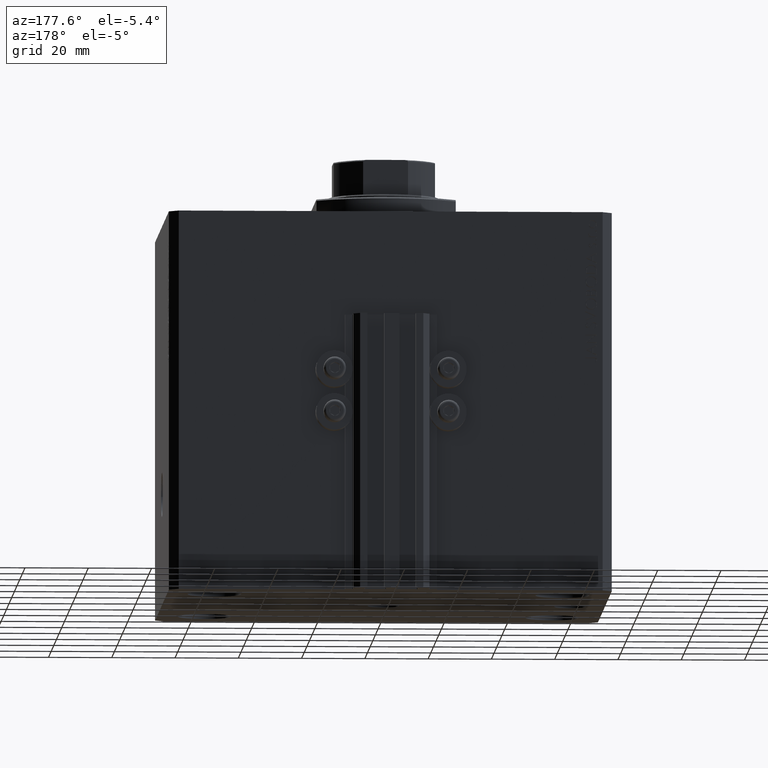
[diagram: clean part render]
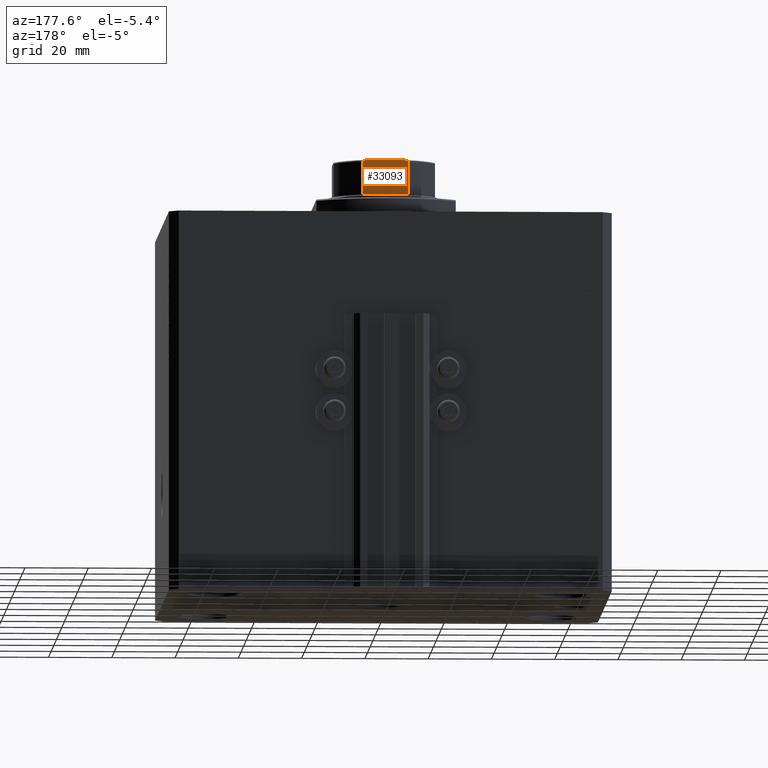
[diagram: same view with one face highlighted and labeled with its STEP entity id]
A machine part, auxiliary view. The second image highlights one B-rep face of the part: STEP entity #33093.
In plain terms, the highlighted planar face has unit normal (0, -1, 0).
Its self-contained STEP definition (entity closure, byte-faithful):
#455 = AXIS2_PLACEMENT_3D ( 'NONE', #27531, #44790, #26602 ) ;
#1572 = DIRECTION ( 'NONE',  ( -1.000000000000000000, -1.084202172485504434E-16, -0.000000000000000000 ) ) ;
#1889 = ORIENTED_EDGE ( 'NONE', *, *, #44153, .F. ) ;
#2401 = ORIENTED_EDGE ( 'NONE', *, *, #27244, .T. ) ;
#2515 = CARTESIAN_POINT ( 'NONE',  ( 7.088723439378916247, 16.00000000000000355, 104.0000000000000284 ) ) ;
#2987 = CARTESIAN_POINT ( 'NONE',  ( -6.623467753754351151, 16.00000000000000355, 114.8910978819201887 ) ) ;
#6081 = VERTEX_POINT ( 'NONE', #37065 ) ;
#7712 = CARTESIAN_POINT ( 'NONE',  ( -16.00000000000000000, 15.99999999999999645, 104.0000000000000142 ) ) ;
#10150 = CARTESIAN_POINT ( 'NONE',  ( -7.055665994487715587, 15.99999999999999289, 114.6256422470903829 ) ) ;
#13043 = DIRECTION ( 'NONE',  ( -0.000000000000000000, -0.000000000000000000, 1.000000000000000000 ) ) ;
#13597 = VERTEX_POINT ( 'NONE', #2515 ) ;
#13970 = CARTESIAN_POINT ( 'NONE',  ( -5.744562646538033945, 16.00000000000000000, 115.0000000000000000 ) ) ;
#14275 = CARTESIAN_POINT ( 'NONE',  ( 6.744478600285203740, 16.00000000000000000, 114.8522542963852828 ) ) ;
#15751 = DIRECTION ( 'NONE',  ( -0.000000000000000000, -0.000000000000000000, 1.000000000000000000 ) ) ;
#15925 = LINE ( 'NONE', #26931, #28376 ) ;
#15986 = CARTESIAN_POINT ( 'NONE',  ( 7.088723439378914470, 16.00000000000000000, -0.001000000000001000089 ) ) ;
#16271 = ORIENTED_EDGE ( 'NONE', *, *, #45776, .T. ) ;
#16396 = CARTESIAN_POINT ( 'NONE',  ( -7.088723439378916247, 16.00000000000000000, -0.001000000000001000089 ) ) ;
#16532 = VERTEX_POINT ( 'NONE', #42569 ) ;
#17085 = CARTESIAN_POINT ( 'NONE',  ( -6.914772706552272830, 15.99999999999999645, 114.7576711345670617 ) ) ;
#18468 = LINE ( 'NONE', #7712, #45550 ) ;
#19558 = CARTESIAN_POINT ( 'NONE',  ( -7.088723439378916247, 16.00000000000000000, 114.5000000000000000 ) ) ;
#21440 = CARTESIAN_POINT ( 'NONE',  ( 7.055793701721082556, 16.00000000000000000, 114.6256279161197966 ) ) ;
#22296 = DIRECTION ( 'NONE',  ( -1.000000000000000000, -1.084202172485504434E-16, -0.000000000000000000 ) ) ;
#23224 = FACE_OUTER_BOUND ( 'NONE', #41245, .T. ) ;
#24193 = B_SPLINE_CURVE_WITH_KNOTS ( 'NONE', 3,
 ( #43010, #43487, #42530, #24334, #14275, #39894, #42773, #21440, #24567, #28642 ),
 .UNSPECIFIED., .F., .F.,
 ( 4, 2, 2, 2, 4 ),
 ( 8.673617379884035472E-19, 0.0007561879621635766383, 0.001134281943245368102, 0.001323328933786262641, 0.001512375924327157180 ),
 .UNSPECIFIED. ) ;
#24334 = CARTESIAN_POINT ( 'NONE',  ( 6.620608993398011677, 16.00000000000000355, 114.8919184437072687 ) ) ;
#24567 = CARTESIAN_POINT ( 'NONE',  ( 7.088723439378914470, 16.00000000000000355, 114.5655697653146632 ) ) ;
#24755 = CARTESIAN_POINT ( 'NONE',  ( -6.746962372739937486, 15.99999999999999645, 114.8511068297690514 ) ) ;
#26602 = DIRECTION ( 'NONE',  ( 1.000000000000000000, 1.084202172485504557E-16, 0.000000000000000000 ) ) ;
#26931 = CARTESIAN_POINT ( 'NONE',  ( -16.00000000000000000, 15.99999999999999645, 115.0000000000000000 ) ) ;
#27244 = EDGE_CURVE ( 'NONE', #40655, #33926, #36160, .T. ) ;
#27531 = CARTESIAN_POINT ( 'NONE',  ( -16.00000000000000000, 15.99999999999999645, 115.0000000000000000 ) ) ;
#28376 = VECTOR ( 'NONE', #1572, 1000.000000000000000 ) ;
#28642 = CARTESIAN_POINT ( 'NONE',  ( 7.088723439378914470, 16.00000000000000000, 114.5000000000000000 ) ) ;
#30193 = PLANE ( 'NONE',  #455 ) ;
#30593 = LINE ( 'NONE', #15986, #34501 ) ;
#30785 = ORIENTED_EDGE ( 'NONE', *, *, #39515, .T. ) ;
#31704 = CARTESIAN_POINT ( 'NONE',  ( -5.999773414835113172, 16.00000000000000000, 115.0000000000000284 ) ) ;
#31729 = LINE ( 'NONE', #16396, #34050 ) ;
#32181 = CARTESIAN_POINT ( 'NONE',  ( -6.968475375953136819, 15.99999999999999645, 114.7205009019615289 ) ) ;
#32700 = ORIENTED_EDGE ( 'NONE', *, *, #32873, .T. ) ;
#32873 = EDGE_CURVE ( 'NONE', #13597, #16532, #18468, .T. ) ;
#33093 = ADVANCED_FACE ( 'NONE', ( #23224 ), #30193, .F. ) ;
#33926 = VERTEX_POINT ( 'NONE', #40675 ) ;
#34050 = VECTOR ( 'NONE', #13043, 1000.000000000000000 ) ;
#34501 = VECTOR ( 'NONE', #15751, 1000.000000000000000 ) ;
#34516 = VERTEX_POINT ( 'NONE', #34860 ) ;
#34860 = CARTESIAN_POINT ( 'NONE',  ( 5.744562646538033057, 16.00000000000000000, 115.0000000000000000 ) ) ;
#35792 = CARTESIAN_POINT ( 'NONE',  ( -7.088723439378917135, 16.00000000000000355, 114.5653596029795693 ) ) ;
#36160 = B_SPLINE_CURVE_WITH_KNOTS ( 'NONE', 3,
 ( #42721, #35792, #10150, #32181, #17085, #24755, #2987, #43191, #31704, #13970 ),
 .UNSPECIFIED., .F., .F.,
 ( 4, 2, 2, 2, 4 ),
 ( 0.000000000000000000, 0.0001928955851489424047, 0.0003857911702978848094, 0.0007715823405957720040, 0.001543164681191536419 ),
 .UNSPECIFIED. ) ;
#37065 = CARTESIAN_POINT ( 'NONE',  ( 7.088723439378914470, 16.00000000000000000, 114.5000000000000000 ) ) ;
#39515 = EDGE_CURVE ( 'NONE', #34516, #6081, #24193, .T. ) ;
#39570 = ORIENTED_EDGE ( 'NONE', *, *, #43234, .F. ) ;
#39894 = CARTESIAN_POINT ( 'NONE',  ( 6.914158745692625452, 16.00000000000000000, 114.7581288012991081 ) ) ;
#40655 = VERTEX_POINT ( 'NONE', #19558 ) ;
#40675 = CARTESIAN_POINT ( 'NONE',  ( -5.744562646538033945, 16.00000000000000000, 115.0000000000000000 ) ) ;
#41245 = EDGE_LOOP ( 'NONE', ( #1889, #30785, #39570, #32700, #16271, #2401 ) ) ;
#42530 = CARTESIAN_POINT ( 'NONE',  ( 6.251780714621283153, 16.00000000000000000, 114.9805079891187063 ) ) ;
#42569 = CARTESIAN_POINT ( 'NONE',  ( -7.088723439378917135, 16.00000000000000000, 104.0000000000000284 ) ) ;
#42721 = CARTESIAN_POINT ( 'NONE',  ( -7.088723439378916247, 16.00000000000000000, 114.5000000000000000 ) ) ;
#42773 = CARTESIAN_POINT ( 'NONE',  ( 6.967626683430020229, 16.00000000000000000, 114.7212986014228733 ) ) ;
#43010 = CARTESIAN_POINT ( 'NONE',  ( 5.744562646538033057, 16.00000000000000000, 115.0000000000000000 ) ) ;
#43191 = CARTESIAN_POINT ( 'NONE',  ( -6.252433022027811482, 15.99999999999999289, 114.9806157152108170 ) ) ;
#43234 = EDGE_CURVE ( 'NONE', #13597, #6081, #30593, .T. ) ;
#43487 = CARTESIAN_POINT ( 'NONE',  ( 5.999698100840003434, 16.00000000000000355, 115.0000000000000284 ) ) ;
#44153 = EDGE_CURVE ( 'NONE', #34516, #33926, #15925, .T. ) ;
#44790 = DIRECTION ( 'NONE',  ( 1.084202172485504557E-16, -1.000000000000000000, 0.000000000000000000 ) ) ;
#45550 = VECTOR ( 'NONE', #22296, 1000.000000000000000 ) ;
#45776 = EDGE_CURVE ( 'NONE', #16532, #40655, #31729, .T. ) ;